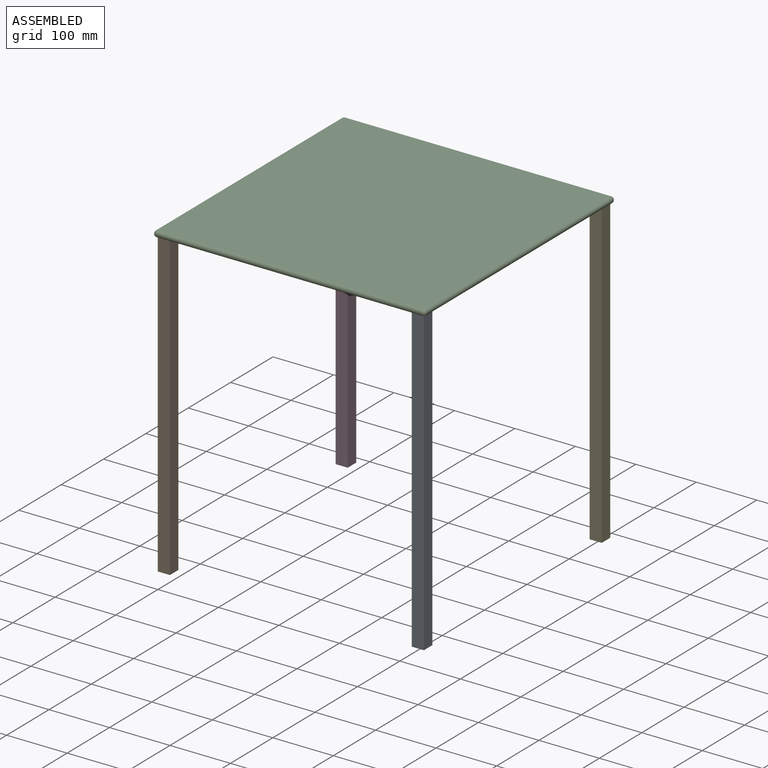
[diagram: assembled view]
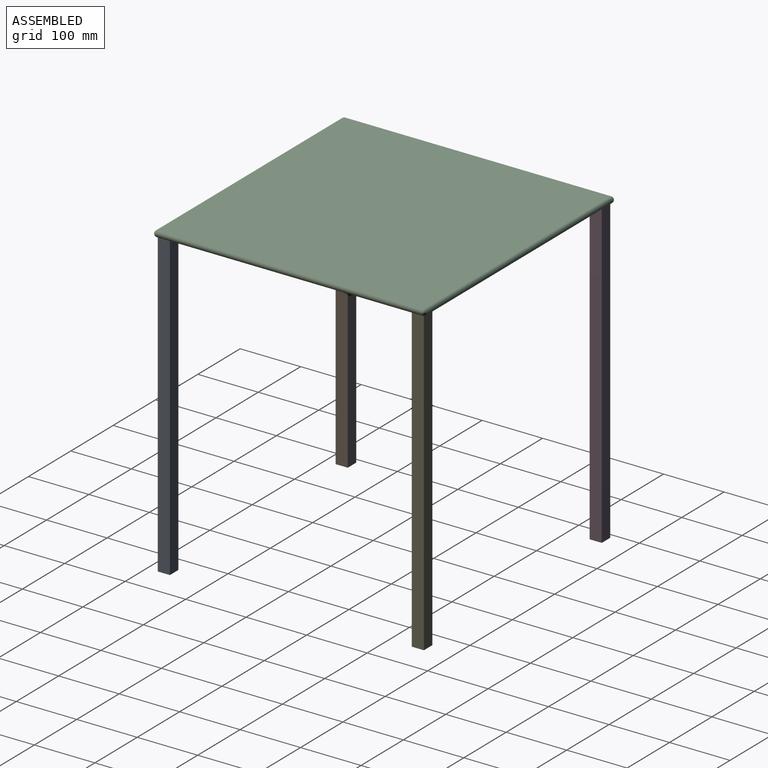
[diagram: assembled view, second angle]
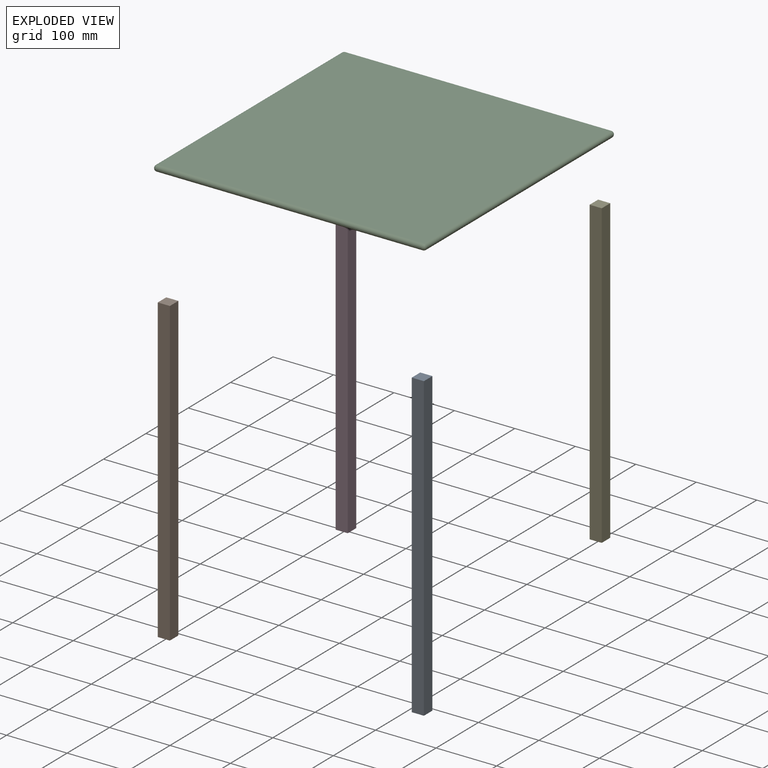
[diagram: exploded view]
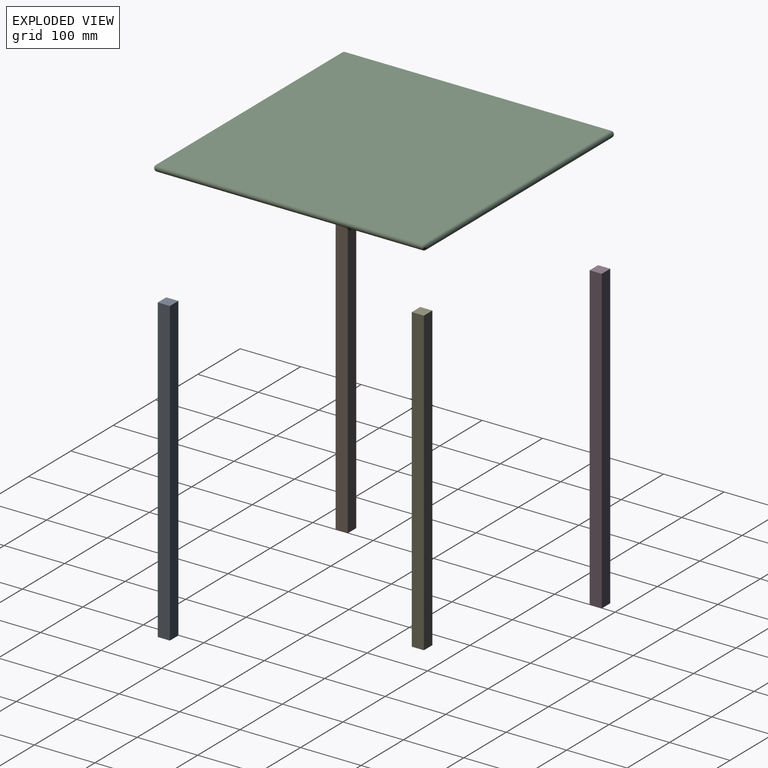
[diagram: exploded view, second angle]
ASSEMBLY  parts=5 mates=4
PART A: 6 faces, bbox 20x20x500 mm
  f0: plane 500x20mm, normal (0,1,0), area 10000mm2, adj f1,f3,f4,f5
  f1: plane 500x20mm, normal (-1,0,0), area 10000mm2, adj f0,f2,f4,f5
  f2: plane 500x20mm, normal (0,-1,0), area 10000mm2, adj f1,f3,f4,f5
  f3: plane 500x20mm, normal (1,0,0), area 10000mm2, adj f0,f2,f4,f5
  f4: plane 20x20mm, normal (0,0,1), area 400mm2, adj f0,f1,f2,f3
  f5: plane 20x20mm, normal (0,0,-1), area 400mm2, adj f0,f1,f2,f3
PART B: same geometry as A
PART C: 10 faces, bbox 450x450x10 mm
  f0: plane 440x440mm, normal (0,0,1), area 193600mm2, adj f3,f4,f7,f8
  f1: plane 440x440mm, normal (0,0,-1), area 193600mm2, adj f3,f4,f7,f8
  f2: sphere r=5mm, area 78.5mm2, adj f3,f4
  f3: cylinder r=5mm len=440mm, axis (0,-1,0), area 6911.5mm2, adj f0,f1,f2,f5
  f4: cylinder r=5mm len=440mm, axis (-1,0,0), area 6911.5mm2, adj f0,f1,f2,f6
  f5: sphere r=5mm, area 78.5mm2, adj f3,f7
  f6: sphere r=5mm, area 78.5mm2, adj f4,f8
  f7: cylinder r=5mm len=440mm, axis (1,0,0), area 6911.5mm2, adj f0,f1,f5,f9
  f8: cylinder r=5mm len=440mm, axis (0,1,0), area 6911.5mm2, adj f0,f1,f6,f9
  f9: sphere r=5mm, area 78.5mm2, adj f7,f8
PART D: same geometry as A
PART E: same geometry as A
PLACE A t=(3.44,-293.19,-314.1)mm
PLACE B t=(-416.56,-293.19,-314.1)mm
PLACE C t=(-96.4,-197.57,185.9)mm
PLACE D t=(-416.56,126.81,-314.1)mm
PLACE E t=(3.44,126.81,-314.1)mm
MATE fastened B.f4 <-> C.f1  axis (0,0,1) through (-497.69,-246.39,185.9)mm
MATE fastened E.f4 <-> C.f1  axis (0,0,1) through (-57.69,193.61,185.9)mm
MATE fastened A.f4 <-> C.f1  axis (0,0,1) through (-57.69,-246.39,185.9)mm
MATE fastened D.f4 <-> C.f1  axis (0,0,1) through (-497.69,193.61,185.9)mm
